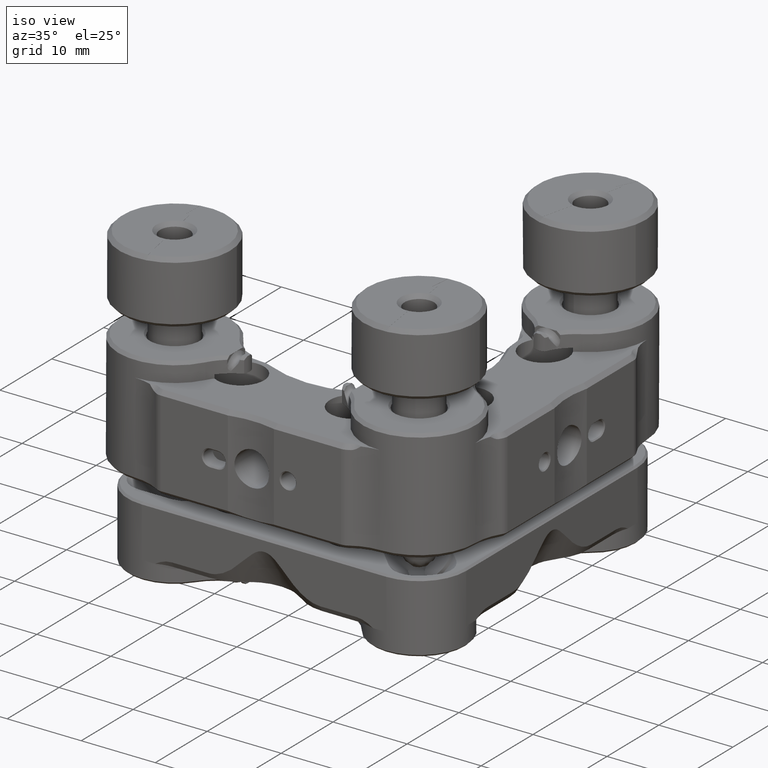
[diagram: clean part render]
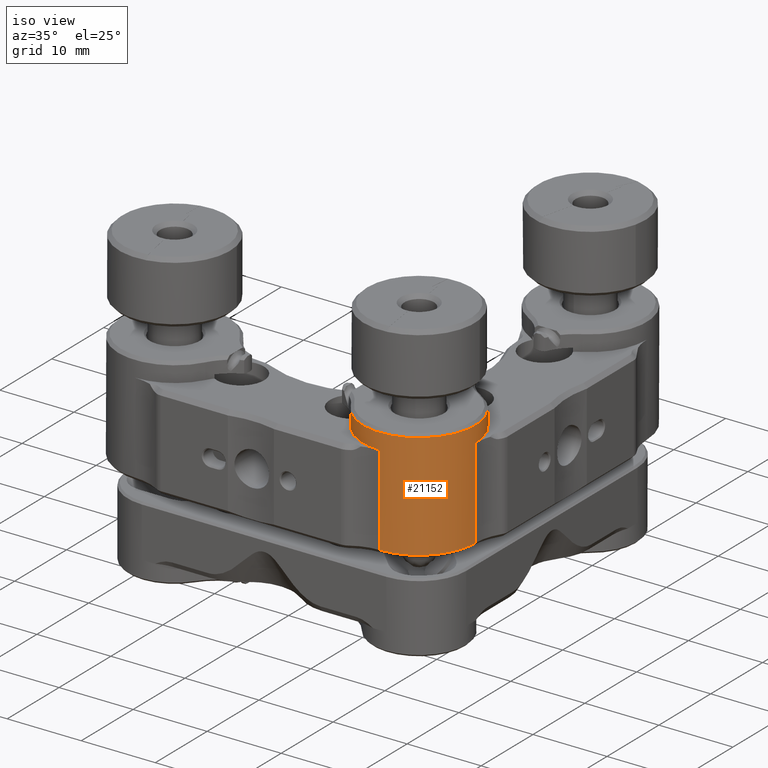
[diagram: same view with one face highlighted and labeled with its STEP entity id]
A machine part, iso view. The second image highlights one B-rep face of the part: STEP entity #21152.
In plain terms, the highlighted cylindrical surface (partial cylindrical patch) has radius 7.62 mm, axis along (0, 0, -1).
Its self-contained STEP definition (entity closure, byte-faithful):
#1290 = LINE ( 'NONE', #45181, #35405 ) ;
#1314 = DIRECTION ( 'NONE',  ( 2.776129051972644027E-17, 2.760323471275298556E-17, -1.000000000000000000 ) ) ;
#1541 = CARTESIAN_POINT ( 'NONE',  ( 3.781151733615863986, 12.11409739724846801, 26.00970909684258103 ) ) ;
#2523 = CARTESIAN_POINT ( 'NONE',  ( -0.1904921385073397033, 18.80393278865879125, 40.36070909685332708 ) ) ;
#3537 = EDGE_LOOP ( 'NONE', ( #60050, #24824, #59107, #39899, #59425, #40919, #54729, #5755 ) ) ;
#4899 = AXIS2_PLACEMENT_3D ( 'NONE', #45523, #1314, #21007 ) ;
#5275 = DIRECTION ( 'NONE',  ( 2.776129051972644027E-17, 2.760323471275298556E-17, -1.000000000000000000 ) ) ;
#5311 = CIRCLE ( 'NONE', #52728, 7.619999999999994778 ) ;
#5348 = EDGE_CURVE ( 'NONE', #19940, #23813, #1290, .T. ) ;
#5755 = ORIENTED_EDGE ( 'NONE', *, *, #29821, .T. ) ;
#5903 = LINE ( 'NONE', #39800, #58545 ) ;
#10285 = DIRECTION ( 'NONE',  ( 9.106159978880882917E-15, -1.000000000000000000, 0.000000000000000000 ) ) ;
#10492 = DIRECTION ( 'NONE',  ( -2.776129051972644027E-17, -2.760323471275298556E-17, 1.000000000000000000 ) ) ;
#11060 = DIRECTION ( 'NONE',  ( -2.776129051972644027E-17, -2.760323471275298556E-17, 1.000000000000000000 ) ) ;
#12055 = AXIS2_PLACEMENT_3D ( 'NONE', #30805, #10492, #30484 ) ;
#12921 = CARTESIAN_POINT ( 'NONE',  ( -10.52868365779691828, 8.465741269369587485, 40.74170909685329178 ) ) ;
#17822 = VERTEX_POINT ( 'NONE', #1541 ) ;
#18131 = CARTESIAN_POINT ( 'NONE',  ( -3.838848266386420516, 12.11409739724847867, 40.36070909685332708 ) ) ;
#18776 = CARTESIAN_POINT ( 'NONE',  ( -0.1904921385074472839, 18.80393278865884099, 38.20170909685329264 ) ) ;
#19451 = DIRECTION ( 'NONE',  ( 2.776129051972644027E-17, 2.760323471275298556E-17, -1.000000000000000000 ) ) ;
#19933 = CARTESIAN_POINT ( 'NONE',  ( -10.52868365779686322, 8.465741269369619459, 40.36070909685335550 ) ) ;
#19940 = VERTEX_POINT ( 'NONE', #18776 ) ;
#20749 = LINE ( 'NONE', #30746, #37645 ) ;
#21007 = DIRECTION ( 'NONE',  ( 9.106159978880882917E-15, -1.000000000000000000, 0.000000000000000000 ) ) ;
#21152 = ADVANCED_FACE ( 'NONE', ( #27263 ), #22109, .T. ) ;
#22109 = CYLINDRICAL_SURFACE ( 'NONE', #54753, 7.619999999999994778 ) ;
#22330 = DIRECTION ( 'NONE',  ( 2.776129051972644027E-17, 2.760323471275298556E-17, -1.000000000000000000 ) ) ;
#22848 = CARTESIAN_POINT ( 'NONE',  ( -3.838848266386347685, 4.494097397229088742, 26.00970909686026644 ) ) ;
#23813 = VERTEX_POINT ( 'NONE', #2523 ) ;
#24217 = LINE ( 'NONE', #12921, #52939 ) ;
#24824 = ORIENTED_EDGE ( 'NONE', *, *, #5348, .T. ) ;
#26318 = DIRECTION ( 'NONE',  ( 2.776129051972644027E-17, 2.760323471275298556E-17, -1.000000000000000000 ) ) ;
#26676 = VERTEX_POINT ( 'NONE', #47164 ) ;
#27263 = FACE_OUTER_BOUND ( 'NONE', #3537, .T. ) ;
#28225 = VERTEX_POINT ( 'NONE', #44481 ) ;
#29821 = EDGE_CURVE ( 'NONE', #17822, #43423, #20749, .T. ) ;
#30484 = DIRECTION ( 'NONE',  ( 9.106159978880882917E-15, -1.000000000000000000, 0.000000000000000000 ) ) ;
#30746 = CARTESIAN_POINT ( 'NONE',  ( 3.781151733613576038, 12.11409739724846801, 40.74170909685329178 ) ) ;
#30805 = CARTESIAN_POINT ( 'NONE',  ( -3.838848266386420516, 12.11409739724847867, 38.20170909685329264 ) ) ;
#31299 = CIRCLE ( 'NONE', #47788, 7.619999999999996554 ) ;
#35405 = VECTOR ( 'NONE', #40028, 1000.000000000000000 ) ;
#37645 = VECTOR ( 'NONE', #11060, 1000.000000000000000 ) ;
#37822 = CIRCLE ( 'NONE', #4899, 7.619999999999994778 ) ;
#39130 = DIRECTION ( 'NONE',  ( -1.001677597676896868E-14, 1.000000000000000000, 0.000000000000000000 ) ) ;
#39800 = CARTESIAN_POINT ( 'NONE',  ( -3.838848266386351238, 4.494097397248486558, 40.74170909685329178 ) ) ;
#39899 = ORIENTED_EDGE ( 'NONE', *, *, #42784, .T. ) ;
#40028 = DIRECTION ( 'NONE',  ( -2.776129051972644027E-17, -2.760323471275298556E-17, 1.000000000000000000 ) ) ;
#40366 = EDGE_CURVE ( 'NONE', #17822, #40675, #31299, .T. ) ;
#40675 = VERTEX_POINT ( 'NONE', #22848 ) ;
#40919 = ORIENTED_EDGE ( 'NONE', *, *, #50837, .T. ) ;
#41163 = VERTEX_POINT ( 'NONE', #19933 ) ;
#42784 = EDGE_CURVE ( 'NONE', #41163, #28225, #24217, .T. ) ;
#43423 = VERTEX_POINT ( 'NONE', #60653 ) ;
#44481 = CARTESIAN_POINT ( 'NONE',  ( -10.52868365779688631, 8.465741269369617683, 38.20170909685329264 ) ) ;
#45181 = CARTESIAN_POINT ( 'NONE',  ( -0.1904921385073050089, 18.80393278865885520, 40.74170909685329178 ) ) ;
#45523 = CARTESIAN_POINT ( 'NONE',  ( -3.838848266386420516, 12.11409739724847867, 38.20170909685329264 ) ) ;
#45788 = CARTESIAN_POINT ( 'NONE',  ( -3.838848266386418739, 12.11409739724848045, 26.00970909685331733 ) ) ;
#47164 = CARTESIAN_POINT ( 'NONE',  ( -3.838848266386349461, 4.494097397248485670, 38.20170909685330685 ) ) ;
#47586 = EDGE_CURVE ( 'NONE', #43423, #19940, #62547, .T. ) ;
#47788 = AXIS2_PLACEMENT_3D ( 'NONE', #45788, #19451, #39130 ) ;
#50837 = EDGE_CURVE ( 'NONE', #26676, #40675, #5903, .T. ) ;
#52286 = DIRECTION ( 'NONE',  ( 2.776129051972644027E-17, 2.760323471275298556E-17, -1.000000000000000000 ) ) ;
#52728 = AXIS2_PLACEMENT_3D ( 'NONE', #18131, #22330, #58122 ) ;
#52939 = VECTOR ( 'NONE', #52286, 1000.000000000000000 ) ;
#54575 = EDGE_CURVE ( 'NONE', #26676, #28225, #37822, .T. ) ;
#54729 = ORIENTED_EDGE ( 'NONE', *, *, #40366, .F. ) ;
#54753 = AXIS2_PLACEMENT_3D ( 'NONE', #60839, #26318, #10285 ) ;
#58122 = DIRECTION ( 'NONE',  ( 9.106159978880882917E-15, -1.000000000000000000, 0.000000000000000000 ) ) ;
#58545 = VECTOR ( 'NONE', #5275, 1000.000000000000000 ) ;
#59107 = ORIENTED_EDGE ( 'NONE', *, *, #61641, .T. ) ;
#59425 = ORIENTED_EDGE ( 'NONE', *, *, #54575, .F. ) ;
#60050 = ORIENTED_EDGE ( 'NONE', *, *, #47586, .T. ) ;
#60653 = CARTESIAN_POINT ( 'NONE',  ( 3.781151733613576038, 12.11409739724846624, 38.20170909685330685 ) ) ;
#60839 = CARTESIAN_POINT ( 'NONE',  ( -3.838848266386420516, 12.11409739724847867, 40.74170909685329178 ) ) ;
#61641 = EDGE_CURVE ( 'NONE', #23813, #41163, #5311, .T. ) ;
#62547 = CIRCLE ( 'NONE', #12055, 7.619999999999994778 ) ;